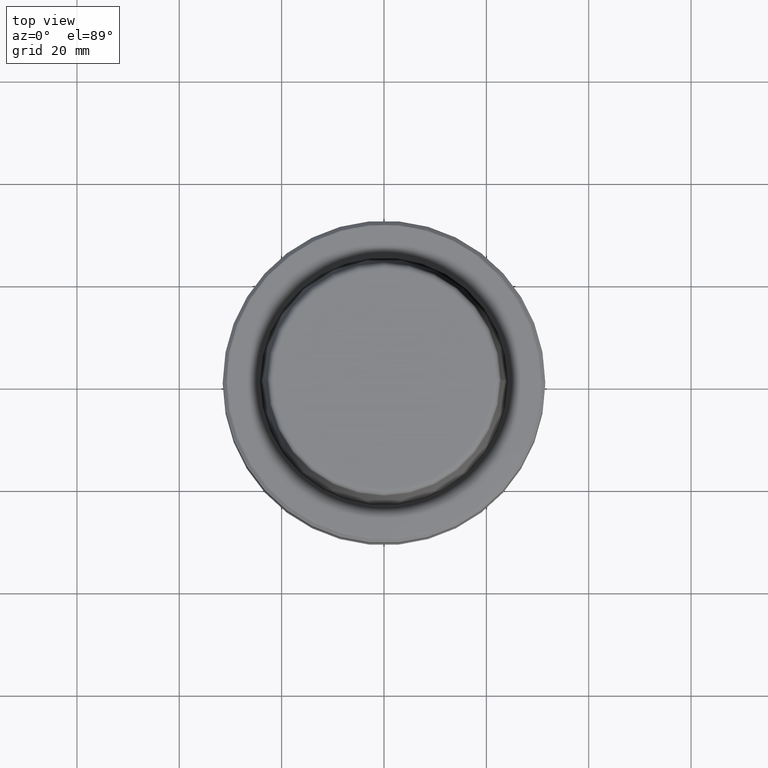
[diagram: clean part render]
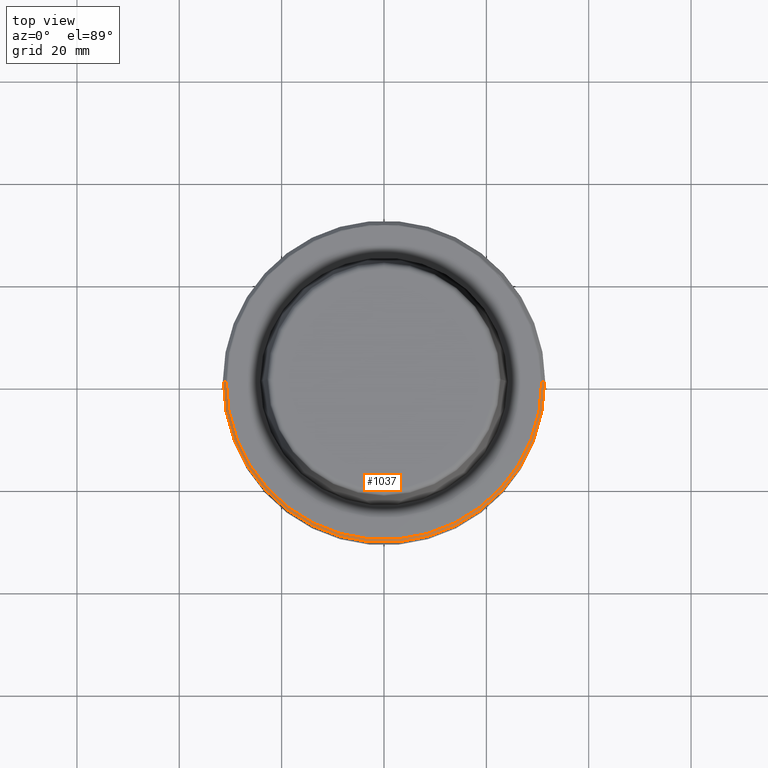
[diagram: same view with one face highlighted and labeled with its STEP entity id]
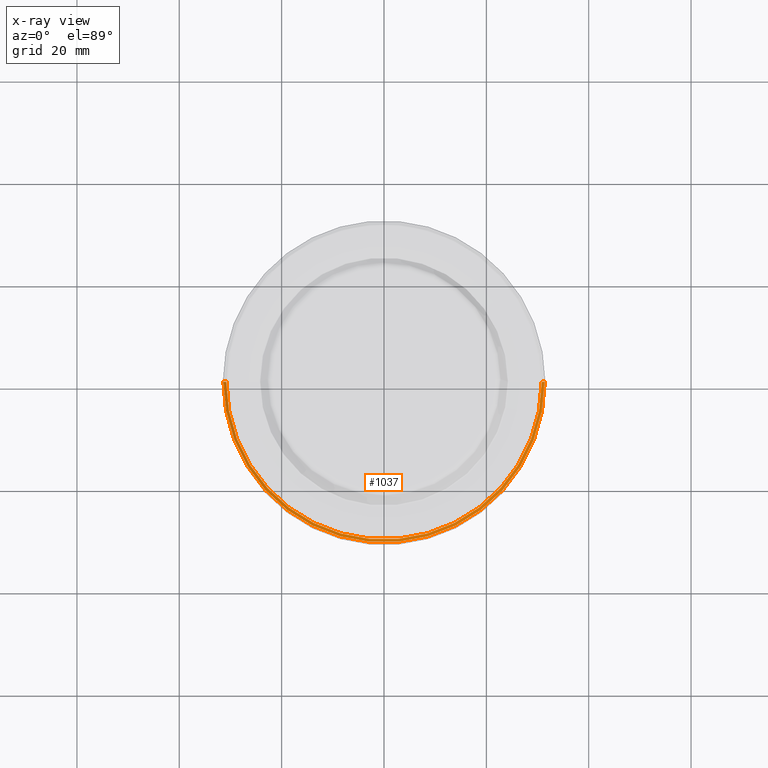
[diagram: x-ray of the same camera — body ghosted, the highlighted face saturated]
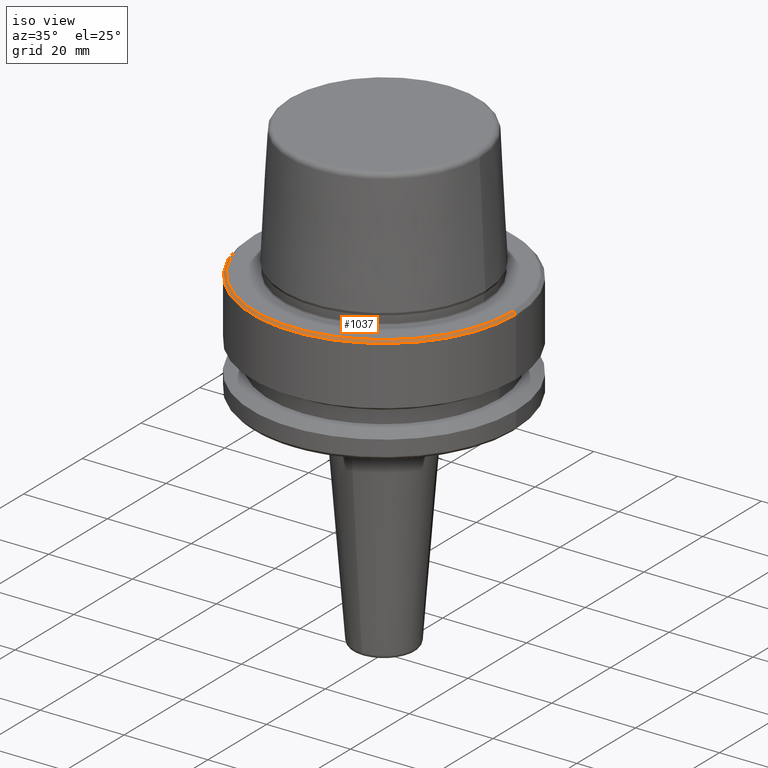
[diagram: same view with one face highlighted and labeled with its STEP entity id]
A machine part, top view. The second image highlights one B-rep face of the part: STEP entity #1037.
The next image is the same camera in x-ray: the body ghosted, the highlighted face saturated — about 0% of this face is hidden behind the body in this view.
A second angle (iso view) of the same face is appended — the face is thin or edge-on in the first view.
In plain terms, the highlighted conical surface has half-angle 45 deg.
Its self-contained STEP definition (entity closure, byte-faithful):
#49 = ORIENTED_EDGE ( 'NONE', *, *, #1193, .F. ) ;
#73 = EDGE_CURVE ( 'NONE', #140, #207, #454, .T. ) ;
#109 = AXIS2_PLACEMENT_3D ( 'NONE', #860, #1125, #774 ) ;
#140 = VERTEX_POINT ( 'NONE', #483 ) ;
#204 = AXIS2_PLACEMENT_3D ( 'NONE', #374, #1055, #468 ) ;
#207 = VERTEX_POINT ( 'NONE', #359 ) ;
#218 = CARTESIAN_POINT ( 'NONE',  ( 30.81715728752537900, 3.808651545348268500E-015, -0.1171572875253851200 ) ) ;
#227 = EDGE_CURVE ( 'NONE', #337, #207, #801, .T. ) ;
#248 = CIRCLE ( 'NONE', #204, 30.81715728752537900 ) ;
#252 = DIRECTION ( 'NONE',  ( -1.000000000000000000, 0.0000000000000000000, 0.0000000000000000000 ) ) ;
#307 = ORIENTED_EDGE ( 'NONE', *, *, #227, .F. ) ;
#337 = VERTEX_POINT ( 'NONE', #218 ) ;
#351 = DIRECTION ( 'NONE',  ( 0.0000000000000000000, 0.0000000000000000000, -1.000000000000000000 ) ) ;
#359 = CARTESIAN_POINT ( 'NONE',  ( 31.38284271247461600, 0.0000000000000000000, -0.6828427124746239100 ) ) ;
#374 = CARTESIAN_POINT ( 'NONE',  ( 0.0000000000000000000, 0.0000000000000000000, -0.1171572875253851200 ) ) ;
#454 = CIRCLE ( 'NONE', #109, 31.38284271247461600 ) ;
#468 = DIRECTION ( 'NONE',  ( 1.000000000000000000, 0.0000000000000000000, 0.0000000000000000000 ) ) ;
#483 = CARTESIAN_POINT ( 'NONE',  ( -31.38284271247461600, 3.850463602455925200E-015, -0.6828427124746239100 ) ) ;
#502 = VECTOR ( 'NONE', #1024, 1000.000000000000000 ) ;
#531 = LINE ( 'NONE', #732, #502 ) ;
#597 = DIRECTION ( 'NONE',  ( 0.7071067811865453500, 8.659560562354907000E-017, -0.7071067811865496800 ) ) ;
#613 = AXIS2_PLACEMENT_3D ( 'NONE', #924, #351, #252 ) ;
#663 = VECTOR ( 'NONE', #597, 1000.000000000000000 ) ;
#698 = CONICAL_SURFACE ( 'NONE', #613, 31.38284271247461600, 0.7853981633974452800 ) ;
#724 = ORIENTED_EDGE ( 'NONE', *, *, #1022, .T. ) ;
#726 = VERTEX_POINT ( 'NONE', #778 ) ;
#732 = CARTESIAN_POINT ( 'NONE',  ( -31.38284271247461600, 0.0000000000000000000, -0.6828427124746239100 ) ) ;
#759 = FACE_OUTER_BOUND ( 'NONE', #1157, .T. ) ;
#774 = DIRECTION ( 'NONE',  ( 1.000000000000000000, 0.0000000000000000000, 0.0000000000000000000 ) ) ;
#778 = CARTESIAN_POINT ( 'NONE',  ( -30.81715728752537900, 0.0000000000000000000, -0.1171572875253851200 ) ) ;
#801 = LINE ( 'NONE', #823, #663 ) ;
#823 = CARTESIAN_POINT ( 'NONE',  ( 31.38284271247461600, 3.843289787597687600E-015, -0.6828427124746239100 ) ) ;
#860 = CARTESIAN_POINT ( 'NONE',  ( 0.0000000000000000000, 0.0000000000000000000, -0.6828427124746239100 ) ) ;
#924 = CARTESIAN_POINT ( 'NONE',  ( 0.0000000000000000000, 0.0000000000000000000, -0.6828427124746239100 ) ) ;
#1022 = EDGE_CURVE ( 'NONE', #726, #140, #531, .T. ) ;
#1024 = DIRECTION ( 'NONE',  ( -0.7071067811865453500, 0.0000000000000000000, -0.7071067811865496800 ) ) ;
#1037 = ADVANCED_FACE ( 'NONE', ( #759 ), #698, .T. ) ;
#1046 = ORIENTED_EDGE ( 'NONE', *, *, #73, .T. ) ;
#1055 = DIRECTION ( 'NONE',  ( -0.0000000000000000000, -0.0000000000000000000, 1.000000000000000000 ) ) ;
#1125 = DIRECTION ( 'NONE',  ( -0.0000000000000000000, -0.0000000000000000000, 1.000000000000000000 ) ) ;
#1157 = EDGE_LOOP ( 'NONE', ( #307, #49, #724, #1046 ) ) ;
#1193 = EDGE_CURVE ( 'NONE', #726, #337, #248, .T. ) ;